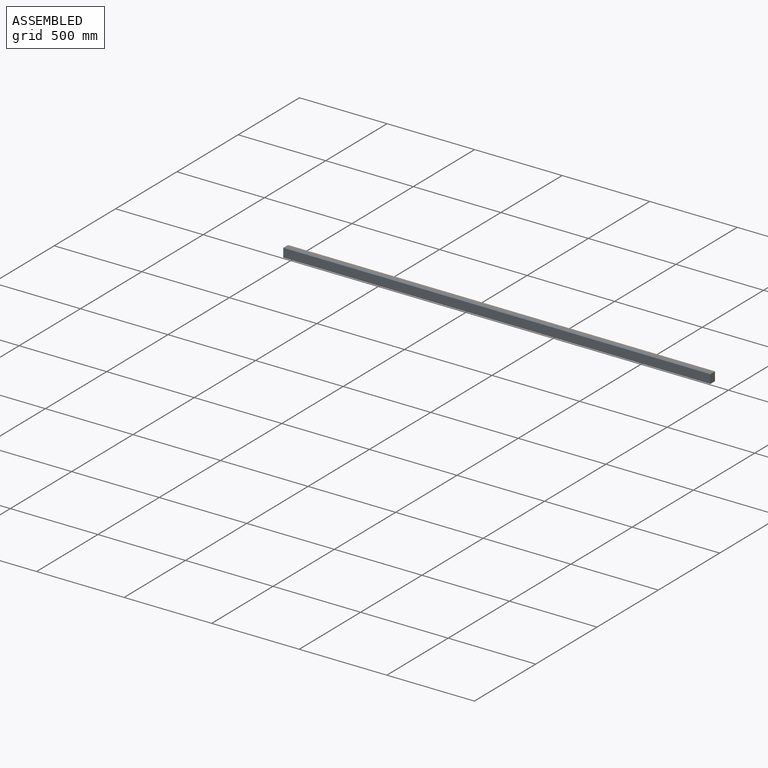
[diagram: assembled view]
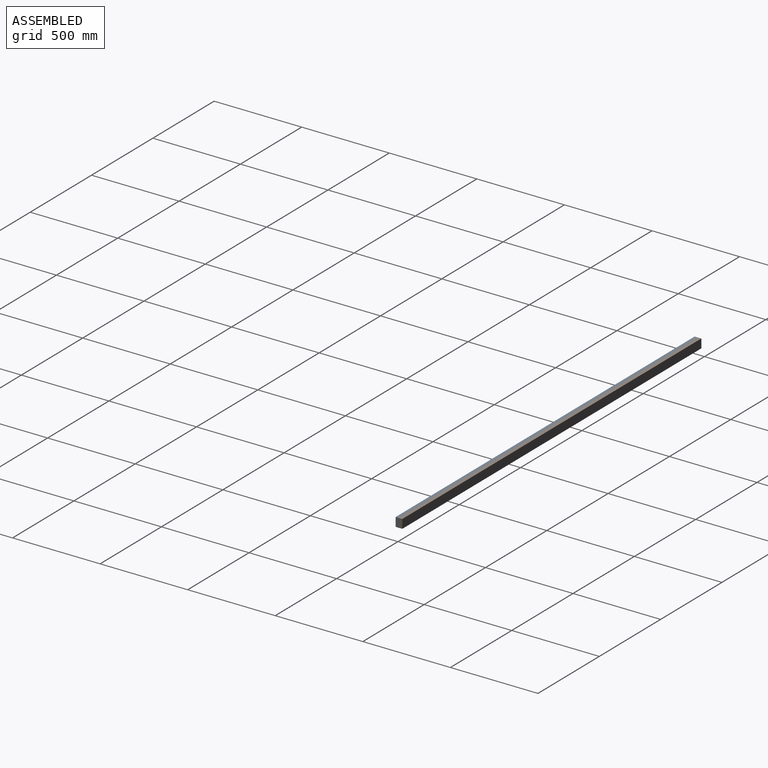
[diagram: assembled view, second angle]
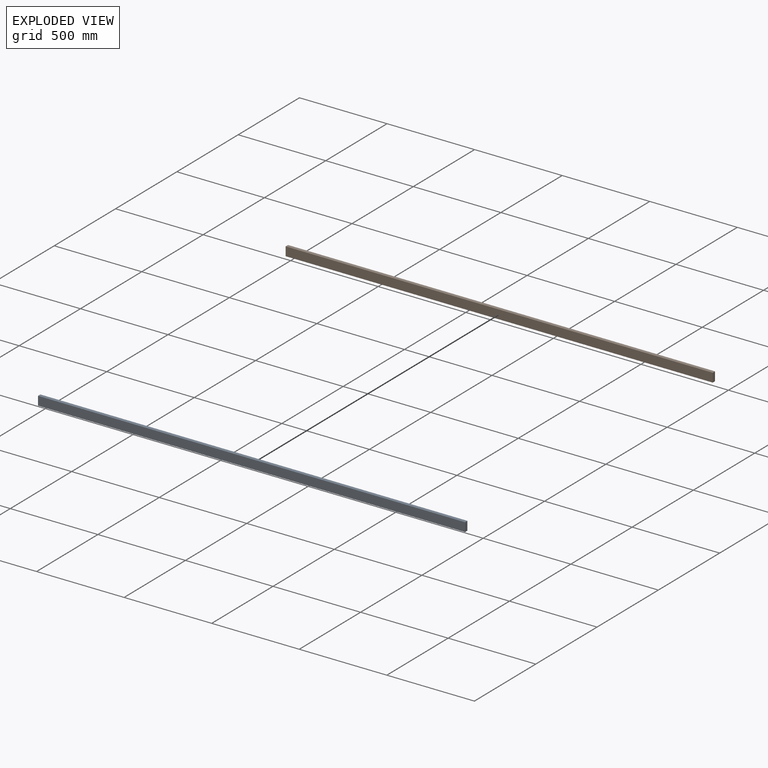
[diagram: exploded view]
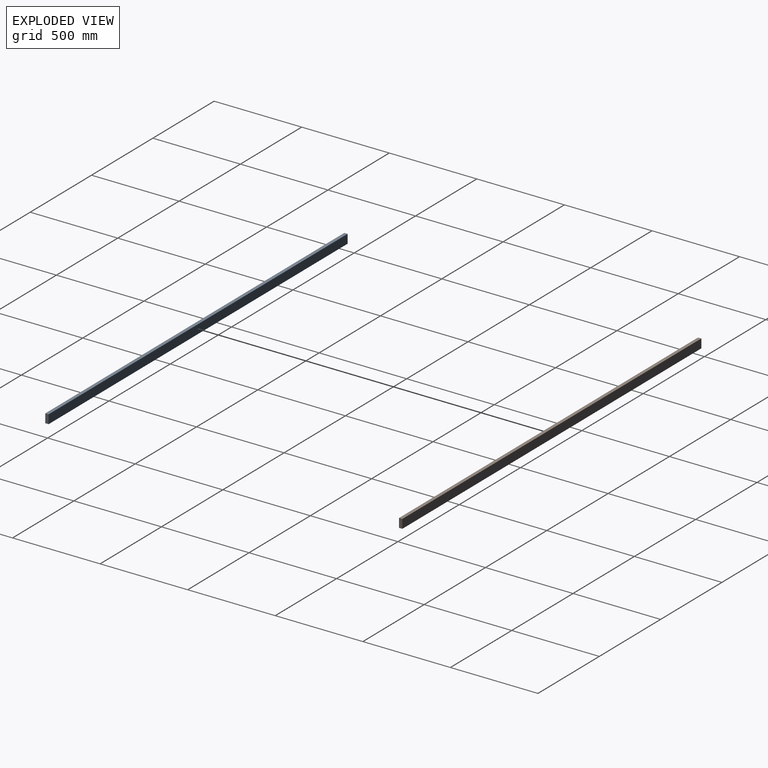
[diagram: exploded view, second angle]
ASSEMBLY  parts=2 mates=3
PART A: 6 faces, bbox 2438.4x19.1x50.8 mm
  f0: plane 2438.4x19.05mm, normal (0,0,1), area 46451.5mm2, adj f1,f3,f4,f5
  f1: plane 50.8x19.05mm, normal (-1,0,0), area 967.7mm2, adj f0,f2,f4,f5
  f2: plane 2438.4x19.05mm, normal (0,0,-1), area 46451.5mm2, adj f1,f3,f4,f5
  f3: plane 50.8x19.05mm, normal (1,0,0), area 967.7mm2, adj f0,f2,f4,f5
  f4: plane 2438.4x50.8mm, normal (0,-1,0), area 123870.7mm2, adj f0,f1,f2,f3
  f5: plane 2438.4x50.8mm, normal (0,1,0), area 123870.7mm2, adj f0,f1,f2,f3
PART B: same geometry as A
PLACE A t=(0,-38.1,0)mm
PLACE B t=(0,-19.05,0)mm
MATE planar B.f4 <-> A.f5  axis (0,-1,0) through (1217.41,-38.1,-374.25)mm
MATE planar B.f0 <-> A.f0  axis (0,0,1) through (1217.41,-28.58,-348.85)mm
MATE planar B.f3 <-> A.f3  axis (1,0,0) through (2436.61,-28.58,-374.25)mm
